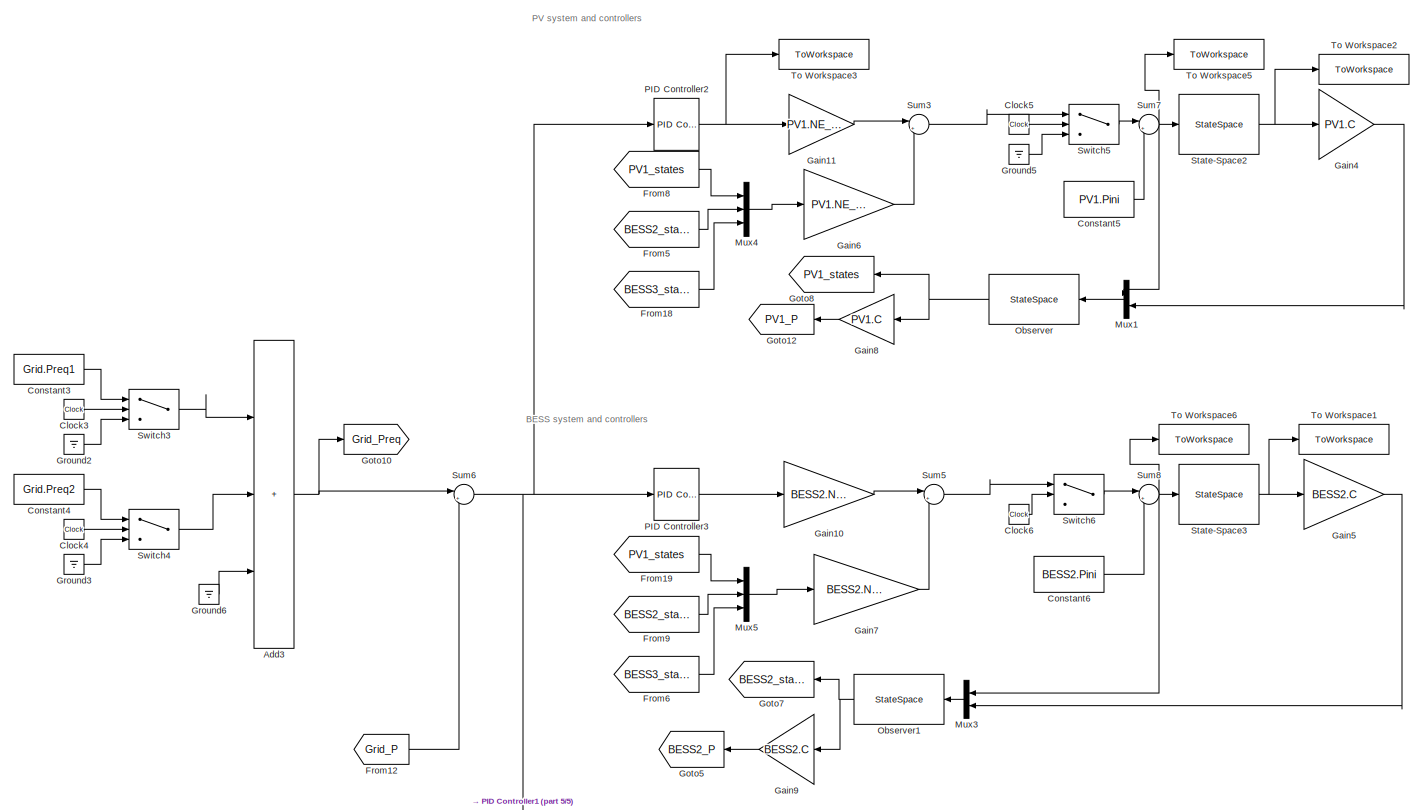
[diagram: root canvas - part 1/5, top center region]
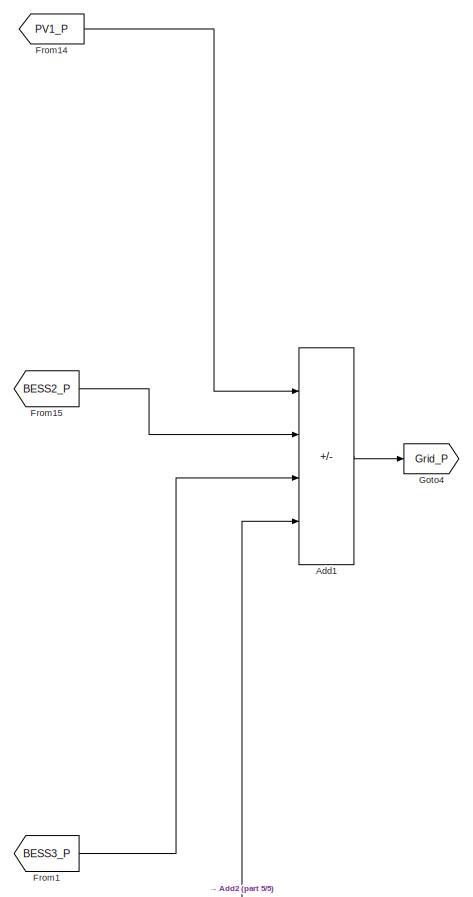
[diagram: root canvas - part 2/5, top right region]
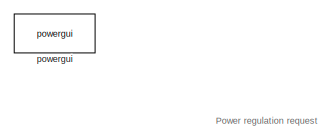
[diagram: root canvas - part 3/5, top left region]
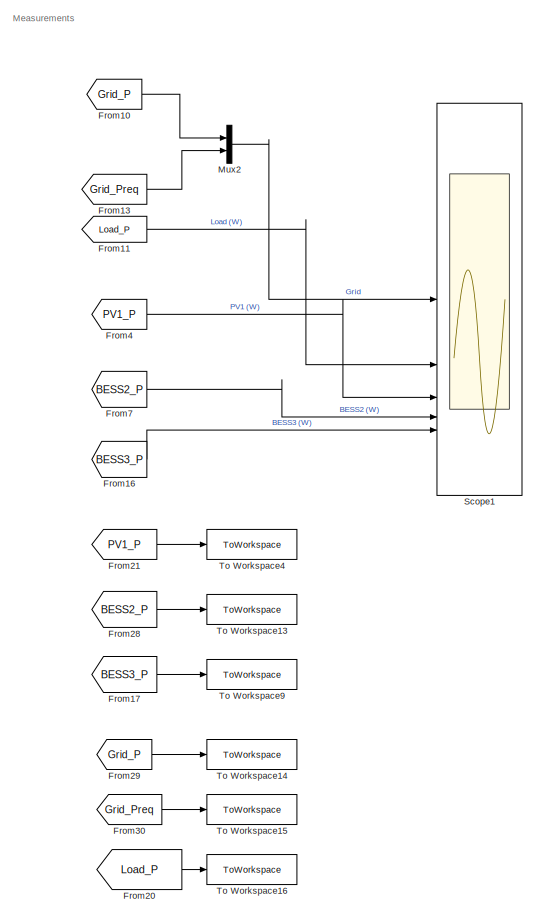
[diagram: root canvas - part 4/5, middle right region]
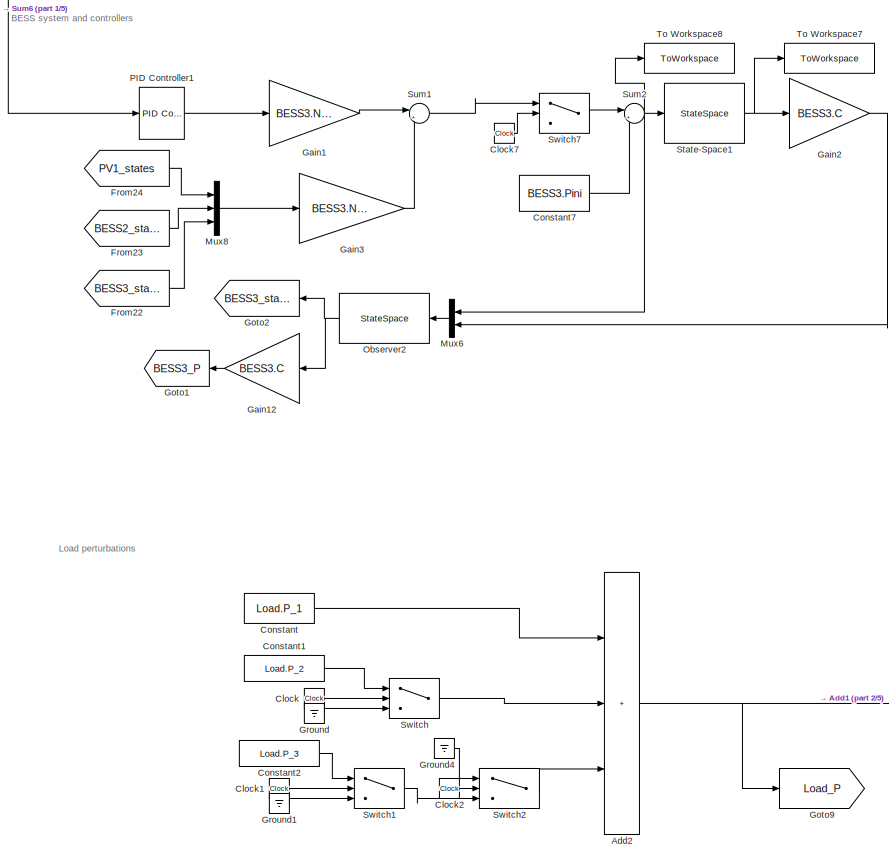
[diagram: root canvas - part 5/5, bottom center region]
MODEL slx_d06d480462cc
KIND model
CONFIG AbsTol = auto
CONFIG EnableMultiTasking = off
CONFIG FixedStep = auto
CONFIG MaxStep = auto
CONFIG MinStep = auto
CONFIG RelTol = 1e-3
CONFIG SampleTimeConstraint = Unconstrained
CONFIG SolverName = VariableStepAuto
CONFIG StartTime = 0.0
CONFIG StopTime = 6
BLOCK [Sum] Add1
  IconShape = rectangular
  Inputs = +++-
BLOCK [Sum] Add2
  IconShape = rectangular
  Inputs = +++
BLOCK [Sum] Add3
  IconShape = rectangular
  Inputs = +++
BLOCK [Clock] Clock
BLOCK [Clock] Clock1
BLOCK [Clock] Clock2
BLOCK [Clock] Clock3
BLOCK [Clock] Clock4
BLOCK [Clock] Clock5
BLOCK [Clock] Clock6
BLOCK [Clock] Clock7
BLOCK [Constant] Constant
  Value = Load.P_1
BLOCK [Constant] Constant1
  Value = Load.P_2
BLOCK [Constant] Constant2
  Value = Load.P_3
BLOCK [Constant] Constant3
  Value = Grid.Preq1
BLOCK [Constant] Constant4
  Value = Grid.Preq2
BLOCK [Constant] Constant5
  Value = PV1.Pini
BLOCK [Constant] Constant6
  Value = BESS2.Pini
BLOCK [Constant] Constant7
  Value = BESS3.Pini
BLOCK [From] From1
  GotoTag = BESS3_P
BLOCK [From] From10
  GotoTag = Grid_P
BLOCK [From] From11
  GotoTag = Load_P
BLOCK [From] From12
  GotoTag = Grid_P
BLOCK [From] From13
  GotoTag = Grid_Preq
BLOCK [From] From14
  GotoTag = PV1_P
BLOCK [From] From15
  GotoTag = BESS2_P
BLOCK [From] From16
  GotoTag = BESS3_P
BLOCK [From] From17
  GotoTag = BESS3_P
BLOCK [From] From18
  GotoTag = BESS3_states
BLOCK [From] From19
  GotoTag = PV1_states
BLOCK [From] From20
  GotoTag = Load_P
BLOCK [From] From21
  GotoTag = PV1_P
BLOCK [From] From22
  GotoTag = BESS3_states
BLOCK [From] From23
  GotoTag = BESS2_states
BLOCK [From] From24
  GotoTag = PV1_states
BLOCK [From] From28
  GotoTag = BESS2_P
BLOCK [From] From29
  GotoTag = Grid_P
BLOCK [From] From30
  GotoTag = Grid_Preq
BLOCK [From] From4
  GotoTag = PV1_P
BLOCK [From] From5
  GotoTag = BESS2_states
BLOCK [From] From6
  GotoTag = BESS3_states
BLOCK [From] From7
  GotoTag = BESS2_P
BLOCK [From] From8
  GotoTag = PV1_states
BLOCK [From] From9
  GotoTag = BESS2_states
BLOCK [Gain] Gain1
  Gain = BESS3.NE_ki
BLOCK [Gain] Gain10
  Gain = BESS2.NE_ki
BLOCK [Gain] Gain11
  Gain = PV1.NE_ki
BLOCK [Gain] Gain12
  Gain = BESS3.C
  Multiplication = Matrix(K*u)
BLOCK [Gain] Gain2
  Gain = BESS3.C
  Multiplication = Matrix(K*u)
BLOCK [Gain] Gain3
  Gain = BESS3.NE_kp
  Multiplication = Matrix(K*u)
BLOCK [Gain] Gain4
  Gain = PV1.C
  Multiplication = Matrix(K*u)
BLOCK [Gain] Gain5
  Gain = BESS2.C
  Multiplication = Matrix(K*u)
BLOCK [Gain] Gain6
  Gain = PV1.NE_kp
  Multiplication = Matrix(K*u)
BLOCK [Gain] Gain7
  Gain = BESS2.NE_kp
  Multiplication = Matrix(K*u)
BLOCK [Gain] Gain8
  Gain = PV1.C
  Multiplication = Matrix(K*u)
BLOCK [Gain] Gain9
  Gain = BESS2.C
  Multiplication = Matrix(K*u)
BLOCK [Goto] Goto1
  GotoTag = BESS3_P
BLOCK [Goto] Goto10
  GotoTag = Grid_Preq
BLOCK [Goto] Goto12
  GotoTag = PV1_P
BLOCK [Goto] Goto2
  GotoTag = BESS3_states
BLOCK [Goto] Goto4
  GotoTag = Grid_P
BLOCK [Goto] Goto5
  GotoTag = BESS2_P
BLOCK [Goto] Goto7
  GotoTag = BESS2_states
BLOCK [Goto] Goto8
  GotoTag = PV1_states
BLOCK [Goto] Goto9
  GotoTag = Load_P
BLOCK [Ground] Ground
BLOCK [Ground] Ground1
BLOCK [Ground] Ground2
BLOCK [Ground] Ground3
BLOCK [Ground] Ground4
BLOCK [Ground] Ground5
BLOCK [Ground] Ground6
BLOCK [Mux] Mux1
  DisplayOption = bar
  Inputs = 2
BLOCK [Mux] Mux2
  DisplayOption = bar
  Inputs = 2
BLOCK [Mux] Mux3
  DisplayOption = bar
  Inputs = 2
BLOCK [Mux] Mux4
  DisplayOption = bar
  Inputs = 3
BLOCK [Mux] Mux5
  DisplayOption = bar
  Inputs = 3
BLOCK [Mux] Mux6
  DisplayOption = bar
  Inputs = 2
BLOCK [Mux] Mux8
  DisplayOption = bar
  Inputs = 3
BLOCK [StateSpace] Observer
  A = PV1.kf_As
  B = PV1.kf_Bs
  C = PV1.kf_Cs
  D = PV1.kf_Ds
  InitialCondition = 0
BLOCK [StateSpace] Observer1
  A = BESS2.kf_As
  B = BESS2.kf_Bs
  C = BESS2.kf_Cs
  D = BESS2.kf_Ds
  InitialCondition = 0
BLOCK [StateSpace] Observer2
  A = BESS3.kf_As
  B = BESS3.kf_Bs
  C = BESS3.kf_Cs
  D = BESS3.kf_Ds
  InitialCondition = 0
BLOCK [Reference] PID Controller1  REF=slpidlib/PID Controller
  LibrarySourceBlock = simulink/Continuous/PID Controller
  SourceBlock = slpidlib/PID Controller
  SourceType = PID 1dof
BLOCK [Reference] PID Controller2  REF=slpidlib/PID Controller
  LibrarySourceBlock = simulink/Continuous/PID Controller
  SourceBlock = slpidlib/PID Controller
  SourceType = PID 1dof
BLOCK [Reference] PID Controller3  REF=slpidlib/PID Controller
  LibrarySourceBlock = simulink/Continuous/PID Controller
  SourceBlock = slpidlib/PID Controller
  SourceType = PID 1dof
BLOCK [Scope] Scope1
  Floating = off
  NumInputPorts = 5
  ScopeSpecificationString = Simulink.scopes.TimeScopeBlockCfg('CurrentConfiguration', extmgr.ConfigurationSet(extmgr.Configuration('Core','General UI',true,'FigureColor',[1 1 1]),extmgr.Configuration('Core','Source UI',true),extmgr.Configuration('Sources','WiredSimulink',true,'DataLoggingVariableName','ScopeData1'),extmgr.Configuration('Visuals','Time Domain',true,'SerializedDisplays',{struct('MinYLimReal','-5500014.19879','...<+7363ch>
BLOCK [StateSpace] State-Space1
  A = BESS3.A
  B = BESS3.B
  C = eye(2,2)
  D = zeros(2,1)
  InitialCondition = 0
BLOCK [StateSpace] State-Space2
  A = PV1.A
  B = PV1.B
  C = eye(2,2)
  D = zeros(2,1)
  InitialCondition = 0
BLOCK [StateSpace] State-Space3
  A = BESS2.A
  B = BESS2.B
  C = eye(2,2)
  D = zeros(2,1)
  InitialCondition = 0
BLOCK [Sum] Sum1
  Inputs = |++
BLOCK [Sum] Sum2
  Inputs = |++
BLOCK [Sum] Sum3
  Inputs = |++
BLOCK [Sum] Sum5
  Inputs = |++
BLOCK [Sum] Sum6
  Inputs = |+-
BLOCK [Sum] Sum7
  Inputs = |++
BLOCK [Sum] Sum8
  Inputs = |++
BLOCK [Switch] Switch
  InputSameDT = off
  SaturateOnIntegerOverflow = off
  Threshold = Load.sw2_closed
BLOCK [Switch] Switch1
  InputSameDT = off
  SaturateOnIntegerOverflow = off
  Threshold = Load.sw3_closed
BLOCK [Switch] Switch2
  InputSameDT = off
  SaturateOnIntegerOverflow = off
  Threshold = Load.sw3_open
BLOCK [Switch] Switch3
  InputSameDT = off
  SaturateOnIntegerOverflow = off
  Threshold = Grid.Time1-0.001
BLOCK [Switch] Switch4
  InputSameDT = off
  SaturateOnIntegerOverflow = off
  Threshold = Grid.Time2
BLOCK [Switch] Switch5
  InputSameDT = off
  SaturateOnIntegerOverflow = off
  Threshold = Grid.Time1
BLOCK [Switch] Switch6
  InputSameDT = off
  SaturateOnIntegerOverflow = off
  Threshold = Grid.Time1
BLOCK [Switch] Switch7
  InputSameDT = off
  SaturateOnIntegerOverflow = off
  Threshold = Grid.Time1
BLOCK [ToWorkspace] To Workspace1
  FixptAsFi = on
  MaxDataPoints = inf
  SampleTime = Ts
  SaveFormat = Timeseries
  VariableName = x_bess2
BLOCK [ToWorkspace] To Workspace13
  FixptAsFi = on
  MaxDataPoints = inf
  SampleTime = Ts
  SaveFormat = Timeseries
  VariableName = BESS2_P
BLOCK [ToWorkspace] To Workspace14
  FixptAsFi = on
  MaxDataPoints = inf
  SampleTime = Ts
  SaveFormat = Timeseries
  VariableName = Grid_P
BLOCK [ToWorkspace] To Workspace15
  FixptAsFi = on
  MaxDataPoints = inf
  SampleTime = Ts
  SaveFormat = Timeseries
  VariableName = Grid_Preq
BLOCK [ToWorkspace] To Workspace16
  FixptAsFi = on
  MaxDataPoints = inf
  SampleTime = Ts
  SaveFormat = Timeseries
  VariableName = Load_P
BLOCK [ToWorkspace] To Workspace2
  FixptAsFi = on
  MaxDataPoints = inf
  SampleTime = Ts
  SaveFormat = Timeseries
  VariableName = x_pv1
BLOCK [ToWorkspace] To Workspace3
  FixptAsFi = on
  MaxDataPoints = inf
  SampleTime = Ts
  SaveFormat = Timeseries
  VariableName = w
BLOCK [ToWorkspace] To Workspace4
  FixptAsFi = on
  MaxDataPoints = inf
  SampleTime = Ts
  SaveFormat = Timeseries
  VariableName = PV1_P
BLOCK [ToWorkspace] To Workspace5
  FixptAsFi = on
  MaxDataPoints = inf
  SampleTime = Ts
  SaveFormat = Timeseries
  VariableName = u_pv1
BLOCK [ToWorkspace] To Workspace6
  FixptAsFi = on
  MaxDataPoints = inf
  SampleTime = Ts
  SaveFormat = Timeseries
  VariableName = u_bess2
BLOCK [ToWorkspace] To Workspace7
  FixptAsFi = on
  MaxDataPoints = inf
  SampleTime = Ts
  SaveFormat = Timeseries
  VariableName = x_bess3
BLOCK [ToWorkspace] To Workspace8
  FixptAsFi = on
  MaxDataPoints = inf
  SampleTime = Ts
  SaveFormat = Timeseries
  VariableName = u_bess3
BLOCK [ToWorkspace] To Workspace9
  FixptAsFi = on
  MaxDataPoints = inf
  SampleTime = Ts
  SaveFormat = Timeseries
  VariableName = BESS3_P
BLOCK [Reference] powergui  REF=spspowerguiLib/powergui
  LibrarySourceBlock = sps_lib/powergui
  Priority = 1
  SourceBlock = spspowerguiLib/powergui
  SourceType = PSB option menu block
ANNOTATION (root): BESS system and controllers
ANNOTATION (root): Load perturbations
ANNOTATION (root): Measurements
ANNOTATION (root): PV system and controllers
ANNOTATION (root): Power regulation request
LINE Add1:1 -> Goto4:1
NET Add2:1 -> Add1:4, Goto9:1
NET Add3:1 -> Goto10:1, Sum6:1
LINE Clock1:1 -> Switch1:2
LINE Clock2:1 -> Switch2:2
LINE Clock3:1 -> Switch3:2
LINE Clock4:1 -> Switch4:2
LINE Clock5:1 -> Switch5:2
LINE Clock6:1 -> Switch6:2
LINE Clock7:1 -> Switch7:2
LINE Clock:1 -> Switch:2
LINE Constant1:1 -> Switch:1
LINE Constant2:1 -> Switch1:1
LINE Constant3:1 -> Switch3:1
LINE Constant4:1 -> Switch4:1
LINE Constant5:1 -> Sum7:2
LINE Constant6:1 -> Sum8:2
LINE Constant7:1 -> Sum2:2
LINE Constant:1 -> Add2:1
LINE From10:1 -> Mux2:1
LINE From11:1 -> Scope1:2
LINE From12:1 -> Sum6:2
LINE From13:1 -> Mux2:2
LINE From14:1 -> Add1:1
LINE From15:1 -> Add1:2
LINE From16:1 -> Scope1:5
LINE From17:1 -> To Workspace9:1
LINE From18:1 -> Mux4:3
LINE From19:1 -> Mux5:1
LINE From1:1 -> Add1:3
LINE From20:1 -> To Workspace16:1
LINE From21:1 -> To Workspace4:1
LINE From22:1 -> Mux8:3
LINE From23:1 -> Mux8:2
LINE From24:1 -> Mux8:1
LINE From28:1 -> To Workspace13:1
LINE From29:1 -> To Workspace14:1
LINE From30:1 -> To Workspace15:1
LINE From4:1 -> Scope1:3
LINE From5:1 -> Mux4:2
LINE From6:1 -> Mux5:3
LINE From7:1 -> Scope1:4
LINE From8:1 -> Mux4:1
LINE From9:1 -> Mux5:2
LINE Gain10:1 -> Sum5:1
LINE Gain11:1 -> Sum3:1
LINE Gain12:1 -> Goto1:1
LINE Gain1:1 -> Sum1:1
LINE Gain2:1 -> Mux6:2
LINE Gain3:1 -> Sum1:2
LINE Gain4:1 -> Mux1:2
LINE Gain5:1 -> Mux3:2
LINE Gain6:1 -> Sum3:2
LINE Gain7:1 -> Sum5:2
LINE Gain8:1 -> Goto12:1
LINE Gain9:1 -> Goto5:1
LINE Ground1:1 -> Switch1:3
LINE Ground2:1 -> Switch3:3
LINE Ground3:1 -> Switch4:3
LINE Ground4:1 -> Switch2:1
LINE Ground5:1 -> Switch5:3
LINE Ground6:1 -> Add3:3
LINE Ground:1 -> Switch:3
LINE Mux1:1 -> Observer:1
LINE Mux2:1 -> Scope1:1
LINE Mux3:1 -> Observer1:1
LINE Mux4:1 -> Gain6:1
LINE Mux5:1 -> Gain7:1
LINE Mux6:1 -> Observer2:1
LINE Mux8:1 -> Gain3:1
NET Observer1:1 -> Gain9:1, Goto7:1
NET Observer2:1 -> Gain12:1, Goto2:1
NET Observer:1 -> Gain8:1, Goto8:1
LINE PID Controller1:1 -> Gain1:1
NET PID Controller2:1 -> Gain11:1, To Workspace3:1
LINE PID Controller3:1 -> Gain10:1
NET State-Space1:1 -> Gain2:1, To Workspace7:1
NET State-Space2:1 -> Gain4:1, To Workspace2:1
NET State-Space3:1 -> Gain5:1, To Workspace1:1
LINE Sum1:1 -> Switch7:1
NET Sum2:1 -> Mux6:1, State-Space1:1, To Workspace8:1
LINE Sum3:1 -> Switch5:1
LINE Sum5:1 -> Switch6:1
NET Sum6:1 -> PID Controller1:1, PID Controller2:1, PID Controller3:1
NET Sum7:1 -> Mux1:1, State-Space2:1, To Workspace5:1
NET Sum8:1 -> Mux3:1, State-Space3:1, To Workspace6:1
LINE Switch1:1 -> Switch2:3
LINE Switch2:1 -> Add2:3
LINE Switch3:1 -> Add3:1
LINE Switch4:1 -> Add3:2
LINE Switch5:1 -> Sum7:1
LINE Switch6:1 -> Sum8:1
LINE Switch7:1 -> Sum2:1
LINE Switch:1 -> Add2:2
note: NET lines group one-source signal fan-out (src -> all destinations, sorted); 1:1 wires keep LINE
